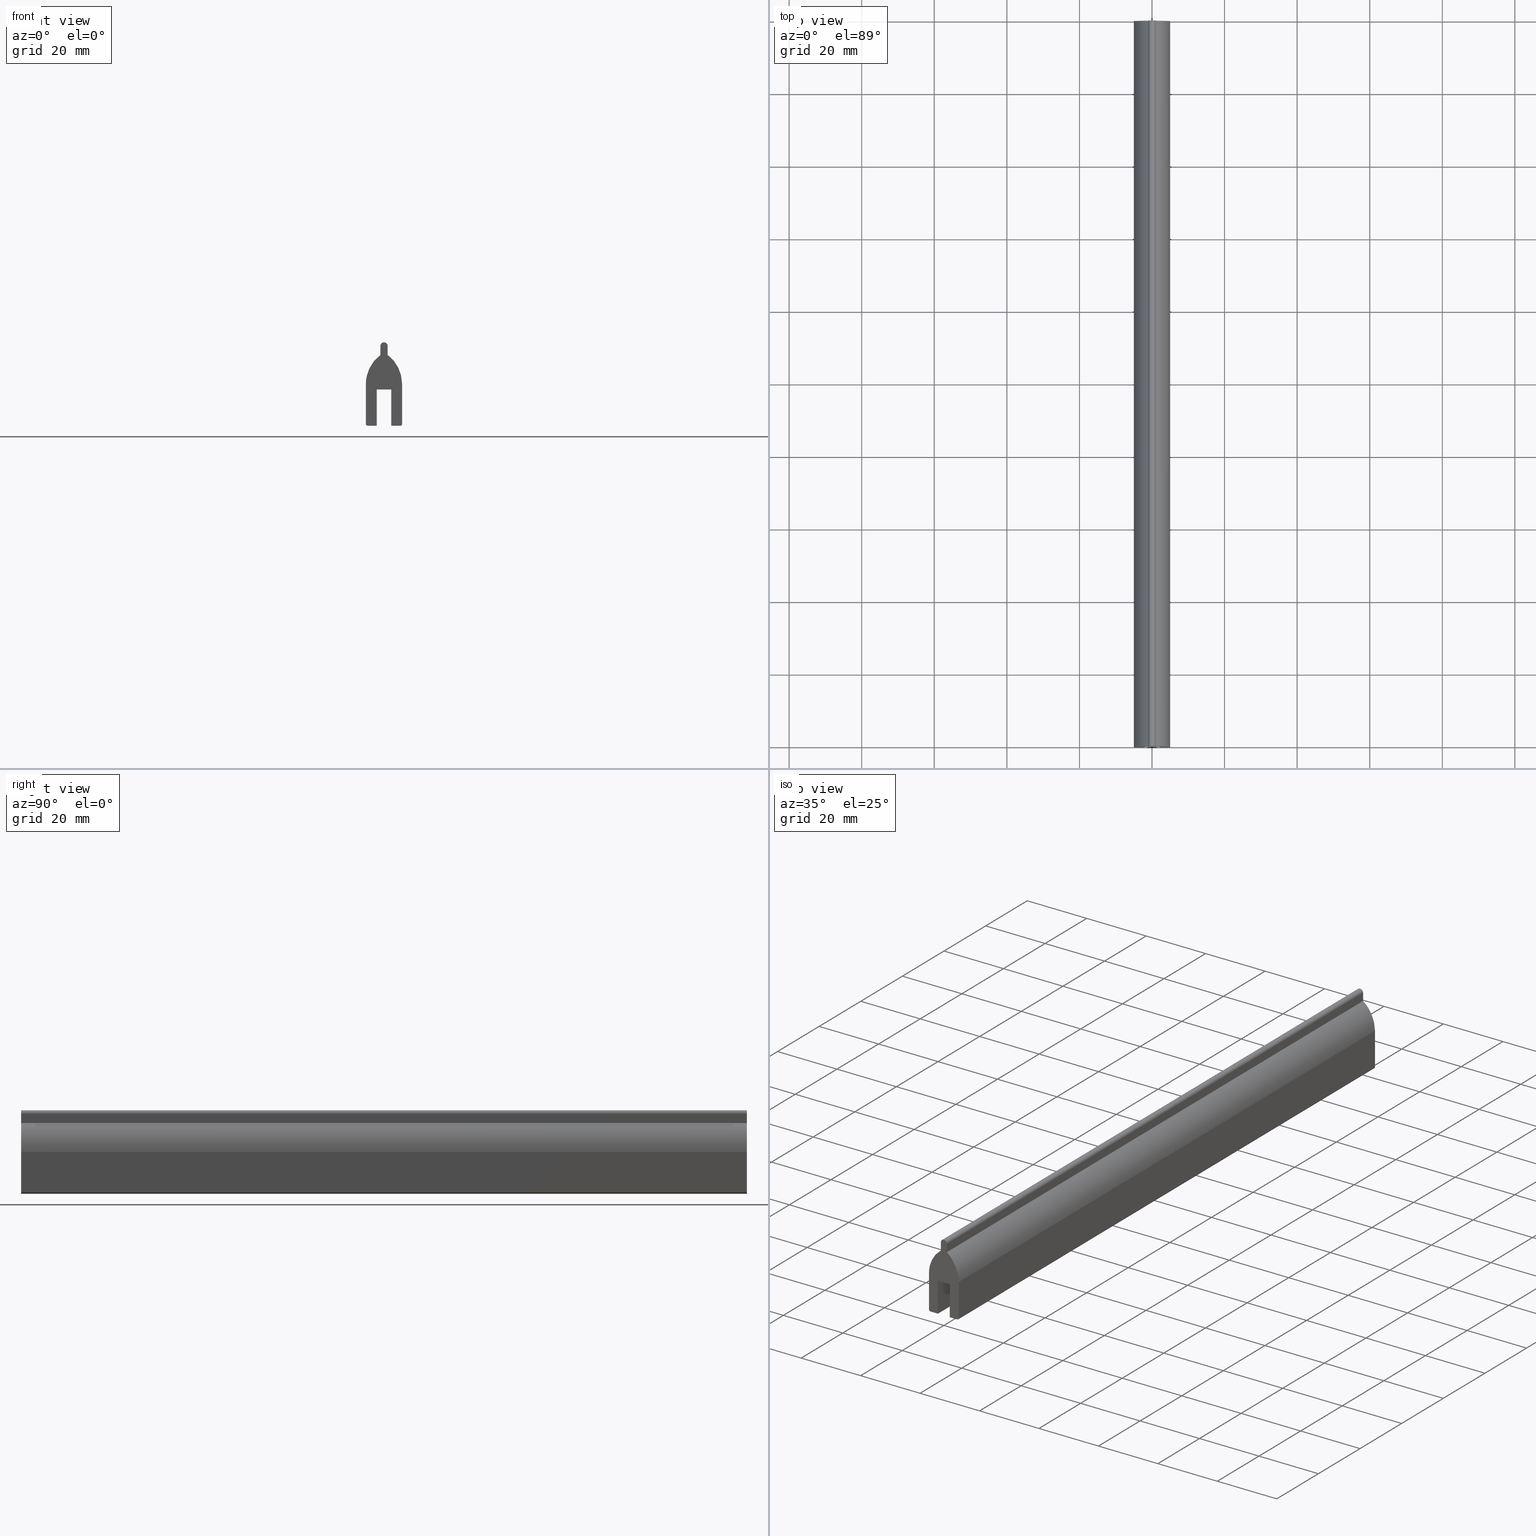
[diagram: canonical four-view strip — front | top / right | iso, engineering-drawing reading convention]
A machine part, canonical four-view strip (front | top / right | iso — engineering-drawing reading convention). The complete STEP part file that produces these views, byte-faithful:
ISO-10303-21;
HEADER;
/****************************************************************
 * Generated by software with PDE/Lib inside                    *
 * PDElib Version 4.4.1-0003, patched  Thursday August 19 11:58 *
 * International Technegroup Inc. (www.iti-oh.com)              *
 ****************************************************************/
FILE_DESCRIPTION((''),'2;1');
FILE_NAME('','2005-12-14T14:55:02',(''),(''),'','CADfix','');
FILE_SCHEMA(('AUTOMOTIVE_DESIGN'));
ENDSEC;
DATA;
#5=APPLICATION_CONTEXT('automotive design');
#6=APPLICATION_PROTOCOL_DEFINITION('Draft International Standard','automotive_design',1998,#5);
#7=PRODUCT_CONTEXT('None',#5,'mechanical');
#8=PRODUCT('rubber foam','','None',(#7));
#9=PRODUCT_RELATED_PRODUCT_CATEGORY('part','description',(#8));
#10=PRODUCT_DEFINITION_FORMATION('None','None',#8);
#11=PRODUCT_DEFINITION_CONTEXT('part definition',#5,'design');
#12=PRODUCT_DEFINITION('None','None',#10,#11);
#18=(NAMED_UNIT(*)PLANE_ANGLE_UNIT()SI_UNIT($,.RADIAN.));
#19=DIMENSIONAL_EXPONENTS(0.0,0.0,0.0,0.0,0.0,0.0,0.0);
#20=PLANE_ANGLE_MEASURE_WITH_UNIT(PLANE_ANGLE_MEASURE(0.017453292500000),#18);
#24=(CONVERSION_BASED_UNIT('DEGREE',#20)NAMED_UNIT(#19)PLANE_ANGLE_UNIT());
#28=(NAMED_UNIT(*)SI_UNIT($,.STERADIAN.)SOLID_ANGLE_UNIT());
#32=(LENGTH_UNIT()NAMED_UNIT(*)SI_UNIT(.MILLI.,.METRE.));
#34=UNCERTAINTY_MEASURE_WITH_UNIT(LENGTH_MEASURE(0.001000000000000),#32,'DISTANCE_ACCURACY_VALUE','');
#36=(GEOMETRIC_REPRESENTATION_CONTEXT(3)GLOBAL_UNCERTAINTY_ASSIGNED_CONTEXT((#34))GLOBAL_UNIT_ASSIGNED_CONTEXT((#24,#28,#32))REPRESENTATION_CONTEXT('None','None'));
#37=AXIS2_PLACEMENT_3D('',#38,#39,#40);
#38=CARTESIAN_POINT('',(0.0,0.0,0.0));
#39=DIRECTION('',(0.0,0.0,1.0));
#40=DIRECTION('',(1.0,0.0,0.0));
#41=ADVANCED_BREP_SHAPE_REPRESENTATION('',(#37,#614),#36);
#42=PRODUCT_DEFINITION_SHAPE('','',#12);
#43=SHAPE_DEFINITION_REPRESENTATION(#42,#41);
#44=CARTESIAN_POINT('',(-5.499499980618060,0.0,1.148849955385142));
#45=CARTESIAN_POINT('',(5.499500248838961,0.0,1.148849955385142));
#46=CARTESIAN_POINT('',(-5.499499980618060,0.0,-24.148850572327881));
#47=CARTESIAN_POINT('',(5.499500248838961,0.0,-24.148850572327881));
#48=B_SPLINE_SURFACE_WITH_KNOTS('',1,1,((#44,#46),(#45,#47)),.UNSPECIFIED.,.F.,.F.,.U.,(2,2),(2,2),(0.0,10.999000229457019),(0.0,25.297700527713019),.UNSPECIFIED.);
#49=CARTESIAN_POINT('',(-0.999999999999989,0.0,-3.500000000000000));
#50=VERTEX_POINT('',#49);
#51=CARTESIAN_POINT('',(-5.0,0.0,-11.500000000000000));
#52=VERTEX_POINT('',#51);
#53=CARTESIAN_POINT('',(-0.999999999999992,0.0,-3.499999999999994));
#54=CARTESIAN_POINT('',(-5.0,0.0,-6.499999999999996));
#55=CARTESIAN_POINT('',(-5.0,0.0,-11.500000000000000));
#63=(BOUNDED_CURVE()B_SPLINE_CURVE(2,(#53,#54,#55),.UNSPECIFIED.,.F.,.U.)CURVE()GEOMETRIC_REPRESENTATION_ITEM()QUASI_UNIFORM_CURVE()RATIONAL_B_SPLINE_CURVE((1.0,0.894427190999916,1.0))REPRESENTATION_ITEM(''));
#64=EDGE_CURVE('',#50,#52,#63,.T.);
#65=ORIENTED_EDGE('',*,*,#64,.T.);
#66=CARTESIAN_POINT('',(-5.0,0.0,-22.500000000000000));
#67=VERTEX_POINT('',#66);
#68=CARTESIAN_POINT('',(-5.0,0.0,-11.500000000000000));
#69=CARTESIAN_POINT('',(-5.0,0.0,-22.500000000000000));
#70=QUASI_UNIFORM_CURVE('',1,(#68,#69),.UNSPECIFIED.,.F.,.U.);
#71=EDGE_CURVE('',#52,#67,#70,.T.);
#72=ORIENTED_EDGE('',*,*,#71,.T.);
#73=CARTESIAN_POINT('',(-4.500000000000000,0.0,-23.0));
#74=VERTEX_POINT('',#73);
#75=CARTESIAN_POINT('',(-4.999999999999999,0.0,-22.500000000000000));
#76=CARTESIAN_POINT('',(-4.999999999999998,0.0,-22.999999999999993));
#77=CARTESIAN_POINT('',(-4.500000000000000,0.0,-23.0));
#85=(BOUNDED_CURVE()B_SPLINE_CURVE(2,(#75,#76,#77),.UNSPECIFIED.,.F.,.U.)CURVE()GEOMETRIC_REPRESENTATION_ITEM()QUASI_UNIFORM_CURVE()RATIONAL_B_SPLINE_CURVE((1.0,0.707106781186548,1.0))REPRESENTATION_ITEM(''));
#86=EDGE_CURVE('',#67,#74,#85,.T.);
#87=ORIENTED_EDGE('',*,*,#86,.T.);
#88=CARTESIAN_POINT('',(-2.0,0.0,-23.0));
#89=VERTEX_POINT('',#88);
#90=CARTESIAN_POINT('',(-4.500000000000000,0.0,-23.0));
#91=CARTESIAN_POINT('',(-2.0,0.0,-23.0));
#92=QUASI_UNIFORM_CURVE('',1,(#90,#91),.UNSPECIFIED.,.F.,.U.);
#93=EDGE_CURVE('',#74,#89,#92,.T.);
#94=ORIENTED_EDGE('',*,*,#93,.T.);
#95=CARTESIAN_POINT('',(-2.0,0.0,-13.0));
#96=VERTEX_POINT('',#95);
#97=CARTESIAN_POINT('',(-2.0,0.0,-23.0));
#98=CARTESIAN_POINT('',(-2.0,0.0,-13.0));
#99=QUASI_UNIFORM_CURVE('',1,(#97,#98),.UNSPECIFIED.,.F.,.U.);
#100=EDGE_CURVE('',#89,#96,#99,.T.);
#101=ORIENTED_EDGE('',*,*,#100,.T.);
#102=CARTESIAN_POINT('',(2.0,0.0,-13.0));
#103=VERTEX_POINT('',#102);
#104=CARTESIAN_POINT('',(-2.0,0.0,-13.0));
#105=CARTESIAN_POINT('',(2.0,0.0,-13.0));
#106=QUASI_UNIFORM_CURVE('',1,(#104,#105),.UNSPECIFIED.,.F.,.U.);
#107=EDGE_CURVE('',#96,#103,#106,.T.);
#108=ORIENTED_EDGE('',*,*,#107,.T.);
#109=CARTESIAN_POINT('',(2.0,0.0,-23.0));
#110=VERTEX_POINT('',#109);
#111=CARTESIAN_POINT('',(2.0,0.0,-13.0));
#112=CARTESIAN_POINT('',(2.0,0.0,-23.0));
#113=QUASI_UNIFORM_CURVE('',1,(#111,#112),.UNSPECIFIED.,.F.,.U.);
#114=EDGE_CURVE('',#103,#110,#113,.T.);
#115=ORIENTED_EDGE('',*,*,#114,.T.);
#116=CARTESIAN_POINT('',(4.500000000000000,0.0,-23.0));
#117=VERTEX_POINT('',#116);
#118=CARTESIAN_POINT('',(2.0,0.0,-23.0));
#119=CARTESIAN_POINT('',(4.500000000000000,0.0,-23.0));
#120=QUASI_UNIFORM_CURVE('',1,(#118,#119),.UNSPECIFIED.,.F.,.U.);
#121=EDGE_CURVE('',#110,#117,#120,.T.);
#122=ORIENTED_EDGE('',*,*,#121,.T.);
#123=CARTESIAN_POINT('',(5.0,0.0,-22.500000000000000));
#124=VERTEX_POINT('',#123);
#125=CARTESIAN_POINT('',(4.500000000000000,0.0,-23.0));
#126=CARTESIAN_POINT('',(4.999999999999998,0.0,-22.999999999999993));
#127=CARTESIAN_POINT('',(4.999999999999999,0.0,-22.500000000000000));
#135=(BOUNDED_CURVE()B_SPLINE_CURVE(2,(#125,#126,#127),.UNSPECIFIED.,.F.,.U.)CURVE()GEOMETRIC_REPRESENTATION_ITEM()QUASI_UNIFORM_CURVE()RATIONAL_B_SPLINE_CURVE((1.0,0.707106781186548,1.0))REPRESENTATION_ITEM(''));
#136=EDGE_CURVE('',#117,#124,#135,.T.);
#137=ORIENTED_EDGE('',*,*,#136,.T.);
#138=CARTESIAN_POINT('',(5.0,0.0,-11.500000000000000));
#139=VERTEX_POINT('',#138);
#140=CARTESIAN_POINT('',(5.0,0.0,-22.500000000000000));
#141=CARTESIAN_POINT('',(5.0,0.0,-11.500000000000000));
#142=QUASI_UNIFORM_CURVE('',1,(#140,#141),.UNSPECIFIED.,.F.,.U.);
#143=EDGE_CURVE('',#124,#139,#142,.T.);
#144=ORIENTED_EDGE('',*,*,#143,.T.);
#145=CARTESIAN_POINT('',(1.000000049449502,0.0,-3.500000037087030));
#146=VERTEX_POINT('',#145);
#147=CARTESIAN_POINT('',(5.0,0.0,-11.500000000000000));
#148=CARTESIAN_POINT('',(5.0,0.0,-6.500000038632387));
#149=CARTESIAN_POINT('',(1.000000049449502,0.0,-3.500000037087030));
#157=(BOUNDED_CURVE()B_SPLINE_CURVE(2,(#147,#148,#149),.UNSPECIFIED.,.F.,.U.)CURVE()GEOMETRIC_REPRESENTATION_ITEM()QUASI_UNIFORM_CURVE()RATIONAL_B_SPLINE_CURVE((1.0,0.894427192382070,1.0))REPRESENTATION_ITEM(''));
#158=EDGE_CURVE('',#139,#146,#157,.T.);
#159=ORIENTED_EDGE('',*,*,#158,.T.);
#160=CARTESIAN_POINT('',(1.0,0.0,-1.0));
#161=VERTEX_POINT('',#160);
#162=CARTESIAN_POINT('',(1.000000049449502,0.0,-3.500000037087030));
#163=CARTESIAN_POINT('',(1.0,0.0,-1.0));
#164=QUASI_UNIFORM_CURVE('',1,(#162,#163),.UNSPECIFIED.,.F.,.U.);
#165=EDGE_CURVE('',#146,#161,#164,.T.);
#166=ORIENTED_EDGE('',*,*,#165,.T.);
#167=CARTESIAN_POINT('',(-1.0,0.0,-1.0));
#168=VERTEX_POINT('',#167);
#169=CARTESIAN_POINT('',(1.0,0.0,-1.0));
#170=CARTESIAN_POINT('',(1.0,0.0,0.0));
#171=CARTESIAN_POINT('',(0.0,0.0,0.0));
#172=CARTESIAN_POINT('',(-1.0,0.0,0.0));
#173=CARTESIAN_POINT('',(-1.0,0.0,-1.0));
#181=(BOUNDED_CURVE()B_SPLINE_CURVE(2,(#169,#170,#171,#172,#173),.UNSPECIFIED.,.F.,.U.)B_SPLINE_CURVE_WITH_KNOTS((3,2,3),(0.0,0.500000000000000,1.0),.UNSPECIFIED.)CURVE()GEOMETRIC_REPRESENTATION_ITEM()RATIONAL_B_SPLINE_CURVE((1.0,0.707106781186548,1.0,0.707106781186548,1.0))REPRESENTATION_ITEM(''));
#182=EDGE_CURVE('',#161,#168,#181,.T.);
#183=ORIENTED_EDGE('',*,*,#182,.T.);
#184=CARTESIAN_POINT('',(-1.0,0.0,-1.0));
#185=CARTESIAN_POINT('',(-0.999999999999989,0.0,-3.500000000000000));
#186=QUASI_UNIFORM_CURVE('',1,(#184,#185),.UNSPECIFIED.,.F.,.U.);
#187=EDGE_CURVE('',#168,#50,#186,.T.);
#188=ORIENTED_EDGE('',*,*,#187,.T.);
#189=EDGE_LOOP('',(#65,#72,#87,#94,#101,#108,#115,#122,#137,#144,#159,#166,#183,#188));
#190=FACE_OUTER_BOUND('',#189,.T.);
#191=ADVANCED_FACE('',(#190),#48,.F.);
#192=CARTESIAN_POINT('',(-5.499499980618060,200.0,1.148849955385142));
#193=CARTESIAN_POINT('',(5.499500248838961,200.0,1.148849955385142));
#194=CARTESIAN_POINT('',(-5.499499980618060,200.0,-24.148850572327881));
#195=CARTESIAN_POINT('',(5.499500248838961,200.0,-24.148850572327881));
#196=B_SPLINE_SURFACE_WITH_KNOTS('',1,1,((#192,#194),(#193,#195)),.UNSPECIFIED.,.F.,.F.,.U.,(2,2),(2,2),(0.0,10.999000229457019),(0.0,25.297700527713019),.UNSPECIFIED.);
#197=CARTESIAN_POINT('',(-0.999999999999989,200.0,-3.500000000000000));
#198=VERTEX_POINT('',#197);
#199=CARTESIAN_POINT('',(-5.0,200.0,-11.500000000000000));
#200=VERTEX_POINT('',#199);
#201=CARTESIAN_POINT('',(-0.999999999999992,200.0,-3.499999999999994));
#202=CARTESIAN_POINT('',(-5.0,200.0,-6.499999999999996));
#203=CARTESIAN_POINT('',(-5.0,200.0,-11.500000000000000));
#211=(BOUNDED_CURVE()B_SPLINE_CURVE(2,(#201,#202,#203),.UNSPECIFIED.,.F.,.U.)CURVE()GEOMETRIC_REPRESENTATION_ITEM()QUASI_UNIFORM_CURVE()RATIONAL_B_SPLINE_CURVE((1.0,0.894427190999916,1.0))REPRESENTATION_ITEM(''));
#212=EDGE_CURVE('',#198,#200,#211,.T.);
#213=ORIENTED_EDGE('',*,*,#212,.F.);
#214=CARTESIAN_POINT('',(-1.0,200.0,-1.0));
#215=VERTEX_POINT('',#214);
#216=CARTESIAN_POINT('',(-1.0,200.0,-1.0));
#217=CARTESIAN_POINT('',(-0.999999999999989,200.0,-3.500000000000000));
#218=QUASI_UNIFORM_CURVE('',1,(#216,#217),.UNSPECIFIED.,.F.,.U.);
#219=EDGE_CURVE('',#215,#198,#218,.T.);
#220=ORIENTED_EDGE('',*,*,#219,.F.);
#221=CARTESIAN_POINT('',(1.0,200.0,-1.0));
#222=VERTEX_POINT('',#221);
#223=CARTESIAN_POINT('',(1.0,200.0,-1.0));
#224=CARTESIAN_POINT('',(1.0,200.0,0.0));
#225=CARTESIAN_POINT('',(0.0,200.0,0.0));
#226=CARTESIAN_POINT('',(-1.0,200.0,0.0));
#227=CARTESIAN_POINT('',(-1.0,200.0,-1.0));
#235=(BOUNDED_CURVE()B_SPLINE_CURVE(2,(#223,#224,#225,#226,#227),.UNSPECIFIED.,.F.,.U.)B_SPLINE_CURVE_WITH_KNOTS((3,2,3),(0.0,0.500000000000000,1.0),.UNSPECIFIED.)CURVE()GEOMETRIC_REPRESENTATION_ITEM()RATIONAL_B_SPLINE_CURVE((1.0,0.707106781186548,1.0,0.707106781186548,1.0))REPRESENTATION_ITEM(''));
#236=EDGE_CURVE('',#222,#215,#235,.T.);
#237=ORIENTED_EDGE('',*,*,#236,.F.);
#238=CARTESIAN_POINT('',(1.000000049449502,200.0,-3.500000037087030));
#239=VERTEX_POINT('',#238);
#240=CARTESIAN_POINT('',(1.000000049449502,200.0,-3.500000037087030));
#241=CARTESIAN_POINT('',(1.0,200.0,-1.0));
#242=QUASI_UNIFORM_CURVE('',1,(#240,#241),.UNSPECIFIED.,.F.,.U.);
#243=EDGE_CURVE('',#239,#222,#242,.T.);
#244=ORIENTED_EDGE('',*,*,#243,.F.);
#245=CARTESIAN_POINT('',(5.0,200.0,-11.500000000000000));
#246=VERTEX_POINT('',#245);
#247=CARTESIAN_POINT('',(5.0,200.0,-11.500000000000000));
#248=CARTESIAN_POINT('',(5.0,199.999999999999940,-6.500000038632387));
#249=CARTESIAN_POINT('',(1.000000049449456,200.0,-3.500000037087092));
#257=(BOUNDED_CURVE()B_SPLINE_CURVE(2,(#247,#248,#249),.UNSPECIFIED.,.F.,.U.)CURVE()GEOMETRIC_REPRESENTATION_ITEM()QUASI_UNIFORM_CURVE()RATIONAL_B_SPLINE_CURVE((1.0,0.894427192382070,1.0))REPRESENTATION_ITEM(''));
#258=EDGE_CURVE('',#246,#239,#257,.T.);
#259=ORIENTED_EDGE('',*,*,#258,.F.);
#260=CARTESIAN_POINT('',(5.0,200.0,-22.500000000000000));
#261=VERTEX_POINT('',#260);
#262=CARTESIAN_POINT('',(5.0,200.0,-22.500000000000000));
#263=CARTESIAN_POINT('',(5.0,200.0,-11.500000000000000));
#264=QUASI_UNIFORM_CURVE('',1,(#262,#263),.UNSPECIFIED.,.F.,.U.);
#265=EDGE_CURVE('',#261,#246,#264,.T.);
#266=ORIENTED_EDGE('',*,*,#265,.F.);
#267=CARTESIAN_POINT('',(4.500000000000000,200.0,-23.0));
#268=VERTEX_POINT('',#267);
#269=CARTESIAN_POINT('',(4.500000000000000,200.0,-23.0));
#270=CARTESIAN_POINT('',(4.999999999999998,200.0,-22.999999999999993));
#271=CARTESIAN_POINT('',(4.999999999999999,200.0,-22.500000000000000));
#279=(BOUNDED_CURVE()B_SPLINE_CURVE(2,(#269,#270,#271),.UNSPECIFIED.,.F.,.U.)CURVE()GEOMETRIC_REPRESENTATION_ITEM()QUASI_UNIFORM_CURVE()RATIONAL_B_SPLINE_CURVE((1.0,0.707106781186548,1.0))REPRESENTATION_ITEM(''));
#280=EDGE_CURVE('',#268,#261,#279,.T.);
#281=ORIENTED_EDGE('',*,*,#280,.F.);
#282=CARTESIAN_POINT('',(2.0,200.0,-23.0));
#283=VERTEX_POINT('',#282);
#284=CARTESIAN_POINT('',(2.0,200.0,-23.0));
#285=CARTESIAN_POINT('',(4.500000000000000,200.0,-23.0));
#286=QUASI_UNIFORM_CURVE('',1,(#284,#285),.UNSPECIFIED.,.F.,.U.);
#287=EDGE_CURVE('',#283,#268,#286,.T.);
#288=ORIENTED_EDGE('',*,*,#287,.F.);
#289=CARTESIAN_POINT('',(2.0,200.0,-13.0));
#290=VERTEX_POINT('',#289);
#291=CARTESIAN_POINT('',(2.0,200.0,-13.0));
#292=CARTESIAN_POINT('',(2.0,200.0,-23.0));
#293=QUASI_UNIFORM_CURVE('',1,(#291,#292),.UNSPECIFIED.,.F.,.U.);
#294=EDGE_CURVE('',#290,#283,#293,.T.);
#295=ORIENTED_EDGE('',*,*,#294,.F.);
#296=CARTESIAN_POINT('',(-2.0,200.0,-13.0));
#297=VERTEX_POINT('',#296);
#298=CARTESIAN_POINT('',(-2.0,200.0,-13.0));
#299=CARTESIAN_POINT('',(2.0,200.0,-13.0));
#300=QUASI_UNIFORM_CURVE('',1,(#298,#299),.UNSPECIFIED.,.F.,.U.);
#301=EDGE_CURVE('',#297,#290,#300,.T.);
#302=ORIENTED_EDGE('',*,*,#301,.F.);
#303=CARTESIAN_POINT('',(-2.0,200.0,-23.0));
#304=VERTEX_POINT('',#303);
#305=CARTESIAN_POINT('',(-2.0,200.0,-23.0));
#306=CARTESIAN_POINT('',(-2.0,200.0,-13.0));
#307=QUASI_UNIFORM_CURVE('',1,(#305,#306),.UNSPECIFIED.,.F.,.U.);
#308=EDGE_CURVE('',#304,#297,#307,.T.);
#309=ORIENTED_EDGE('',*,*,#308,.F.);
#310=CARTESIAN_POINT('',(-4.500000000000000,200.0,-23.0));
#311=VERTEX_POINT('',#310);
#312=CARTESIAN_POINT('',(-4.500000000000000,200.0,-23.0));
#313=CARTESIAN_POINT('',(-2.0,200.0,-23.0));
#314=QUASI_UNIFORM_CURVE('',1,(#312,#313),.UNSPECIFIED.,.F.,.U.);
#315=EDGE_CURVE('',#311,#304,#314,.T.);
#316=ORIENTED_EDGE('',*,*,#315,.F.);
#317=CARTESIAN_POINT('',(-5.0,200.0,-22.500000000000000));
#318=VERTEX_POINT('',#317);
#319=CARTESIAN_POINT('',(-4.999999999999999,200.0,-22.500000000000000));
#320=CARTESIAN_POINT('',(-4.999999999999998,200.0,-22.999999999999993));
#321=CARTESIAN_POINT('',(-4.500000000000000,200.0,-23.0));
#329=(BOUNDED_CURVE()B_SPLINE_CURVE(2,(#319,#320,#321),.UNSPECIFIED.,.F.,.U.)CURVE()GEOMETRIC_REPRESENTATION_ITEM()QUASI_UNIFORM_CURVE()RATIONAL_B_SPLINE_CURVE((1.0,0.707106781186548,1.0))REPRESENTATION_ITEM(''));
#330=EDGE_CURVE('',#318,#311,#329,.T.);
#331=ORIENTED_EDGE('',*,*,#330,.F.);
#332=CARTESIAN_POINT('',(-5.0,200.0,-11.500000000000000));
#333=CARTESIAN_POINT('',(-5.0,200.0,-22.500000000000000));
#334=QUASI_UNIFORM_CURVE('',1,(#332,#333),.UNSPECIFIED.,.F.,.U.);
#335=EDGE_CURVE('',#200,#318,#334,.T.);
#336=ORIENTED_EDGE('',*,*,#335,.F.);
#337=EDGE_LOOP('',(#213,#220,#237,#244,#259,#266,#281,#288,#295,#302,#309,#316,#331,#336));
#338=FACE_OUTER_BOUND('',#337,.T.);
#339=ADVANCED_FACE('',(#338),#196,.T.);
#340=CARTESIAN_POINT('',(-0.999999999999989,-9.989999612361194,-3.624874995154515));
#341=CARTESIAN_POINT('',(-0.999999999999989,-9.989999612361194,-0.875124937790260));
#342=CARTESIAN_POINT('',(-0.999999999999989,209.990004976779200,-3.624874995154515));
#343=CARTESIAN_POINT('',(-0.999999999999989,209.990004976779200,-0.875124937790260));
#344=B_SPLINE_SURFACE_WITH_KNOTS('',1,1,((#340,#342),(#341,#343)),.UNSPECIFIED.,.F.,.F.,.U.,(2,2),(2,2),(0.0,2.749750057364256),(0.0,219.980004589140410),.UNSPECIFIED.);
#345=ORIENTED_EDGE('',*,*,#187,.F.);
#346=CARTESIAN_POINT('',(-1.0,200.0,-1.0));
#347=CARTESIAN_POINT('',(-1.0,0.0,-1.0));
#348=QUASI_UNIFORM_CURVE('',1,(#346,#347),.UNSPECIFIED.,.F.,.U.);
#349=EDGE_CURVE('',#215,#168,#348,.T.);
#350=ORIENTED_EDGE('',*,*,#349,.F.);
#351=ORIENTED_EDGE('',*,*,#219,.T.);
#352=CARTESIAN_POINT('',(-0.999999999999989,200.0,-3.500000000000000));
#353=CARTESIAN_POINT('',(-0.999999999999989,0.0,-3.500000000000000));
#354=QUASI_UNIFORM_CURVE('',1,(#352,#353),.UNSPECIFIED.,.F.,.U.);
#355=EDGE_CURVE('',#198,#50,#354,.T.);
#356=ORIENTED_EDGE('',*,*,#355,.T.);
#357=EDGE_LOOP('',(#345,#350,#351,#356));
#358=FACE_OUTER_BOUND('',#357,.T.);
#359=ADVANCED_FACE('',(#358),#344,.T.);
#360=CARTESIAN_POINT('',(-0.999657324975557,205.0,-1.026176948307875));
#361=CARTESIAN_POINT('',(-0.999657324975557,-5.125000000000000,-1.026176948307875));
#362=CARTESIAN_POINT('',(-1.027242072842902,205.000000000000030,0.027242072842899));
#363=CARTESIAN_POINT('',(-1.027242072842902,-5.124999999999999,0.027242072842899));
#364=CARTESIAN_POINT('',(0.026176948307872,205.0,-0.000342675024443));
#365=CARTESIAN_POINT('',(0.026176948307872,-5.125000000000000,-0.000342675024443));
#366=CARTESIAN_POINT('',(1.079595969458645,205.000000000000030,-0.027927422891785));
#367=CARTESIAN_POINT('',(1.079595969458645,-5.124999999999999,-0.027927422891785));
#368=CARTESIAN_POINT('',(0.996917333733128,205.0,-1.078459095727844));
#369=CARTESIAN_POINT('',(0.996917333733128,-5.125000000000000,-1.078459095727844));
#377=(BOUNDED_SURFACE()B_SPLINE_SURFACE(1,2,((#360,#362,#364,#366,#368),(#361,#363,#365,#367,#369)),.UNSPECIFIED.,.F.,.F.,.U.)B_SPLINE_SURFACE_WITH_KNOTS((2,2),(3,2,3),(0.0,210.125000000000110),(0.0,1.0,2.0),.UNSPECIFIED.)GEOMETRIC_REPRESENTATION_ITEM()RATIONAL_B_SPLINE_SURFACE(((1.0,0.688354575693754,1.0,0.688354575693754,1.0),(1.0,0.688354575693754,1.0,0.688354575693754,1.0)))REPRESENTATION_ITEM('')SURFACE());
#378=ORIENTED_EDGE('',*,*,#182,.F.);
#379=CARTESIAN_POINT('',(1.0,200.0,-1.0));
#380=CARTESIAN_POINT('',(1.0,0.0,-1.0));
#381=QUASI_UNIFORM_CURVE('',1,(#379,#380),.UNSPECIFIED.,.F.,.U.);
#382=EDGE_CURVE('',#222,#161,#381,.T.);
#383=ORIENTED_EDGE('',*,*,#382,.F.);
#384=ORIENTED_EDGE('',*,*,#236,.T.);
#385=ORIENTED_EDGE('',*,*,#349,.T.);
#386=EDGE_LOOP('',(#378,#383,#384,#385));
#387=FACE_OUTER_BOUND('',#386,.T.);
#388=ADVANCED_FACE('',(#387),#377,.T.);
#389=CARTESIAN_POINT('',(1.0,-9.989999612361194,-0.875125011924744));
#390=CARTESIAN_POINT('',(1.0,-9.989999612361194,-3.624874913403576));
#391=CARTESIAN_POINT('',(1.0,209.990004976779200,-0.875125011924744));
#392=CARTESIAN_POINT('',(1.0,209.990004976779200,-3.624874913403576));
#393=B_SPLINE_SURFACE_WITH_KNOTS('',1,1,((#389,#391),(#390,#392)),.UNSPECIFIED.,.F.,.F.,.U.,(2,2),(2,2),(0.0,2.749749901478832),(0.0,219.980004589140410),.UNSPECIFIED.);
#394=ORIENTED_EDGE('',*,*,#165,.F.);
#395=CARTESIAN_POINT('',(1.000000049449502,200.0,-3.500000037087030));
#396=CARTESIAN_POINT('',(1.000000049449502,0.0,-3.500000037087030));
#397=QUASI_UNIFORM_CURVE('',1,(#395,#396),.UNSPECIFIED.,.F.,.U.);
#398=EDGE_CURVE('',#239,#146,#397,.T.);
#399=ORIENTED_EDGE('',*,*,#398,.F.);
#400=ORIENTED_EDGE('',*,*,#243,.T.);
#401=ORIENTED_EDGE('',*,*,#382,.T.);
#402=EDGE_LOOP('',(#394,#399,#400,#401));
#403=FACE_OUTER_BOUND('',#402,.T.);
#404=ADVANCED_FACE('',(#403),#393,.T.);
#405=CARTESIAN_POINT('',(0.664062369248323,205.0,-3.258738113779845));
#406=CARTESIAN_POINT('',(0.664062369248323,-5.125000000000000,-3.258738113779845));
#407=CARTESIAN_POINT('',(5.237688153939895,205.0,-6.402104027367725));
#408=CARTESIAN_POINT('',(5.237688153939895,-5.125000000000001,-6.402104027367725));
#409=CARTESIAN_POINT('',(4.990038418737389,205.000000000000030,-11.946242526156869));
#410=CARTESIAN_POINT('',(4.990038418737389,-5.125000000000000,-11.946242526156869));
#418=(BOUNDED_SURFACE()B_SPLINE_SURFACE(1,2,((#405,#407,#409),(#406,#408,#410)),.UNSPECIFIED.,.F.,.F.,.U.)B_SPLINE_SURFACE_WITH_KNOTS((2,2),(3,3),(0.0,210.125000000000000),(0.0,10.355382064580510),.UNSPECIFIED.)GEOMETRIC_REPRESENTATION_ITEM()RATIONAL_B_SPLINE_SURFACE(((1.0,0.870547137844800,0.991261755100546),(1.0,0.870547137844800,0.991261755100546)))REPRESENTATION_ITEM('')SURFACE());
#419=ORIENTED_EDGE('',*,*,#158,.F.);
#420=CARTESIAN_POINT('',(5.0,200.0,-11.500000000000000));
#421=CARTESIAN_POINT('',(5.0,0.0,-11.500000000000000));
#422=QUASI_UNIFORM_CURVE('',1,(#420,#421),.UNSPECIFIED.,.F.,.U.);
#423=EDGE_CURVE('',#246,#139,#422,.T.);
#424=ORIENTED_EDGE('',*,*,#423,.F.);
#425=ORIENTED_EDGE('',*,*,#258,.T.);
#426=ORIENTED_EDGE('',*,*,#398,.T.);
#427=EDGE_LOOP('',(#419,#424,#425,#426));
#428=FACE_OUTER_BOUND('',#427,.T.);
#429=ADVANCED_FACE('',(#428),#418,.T.);
#430=CARTESIAN_POINT('',(5.0,-9.989999612361194,-10.950550021320129));
#431=CARTESIAN_POINT('',(5.0,-9.989999612361194,-23.049450273722861));
#432=CARTESIAN_POINT('',(5.0,209.990004976779200,-10.950550021320129));
#433=CARTESIAN_POINT('',(5.0,209.990004976779200,-23.049450273722861));
#434=B_SPLINE_SURFACE_WITH_KNOTS('',1,1,((#430,#432),(#431,#433)),.UNSPECIFIED.,.F.,.F.,.U.,(2,2),(2,2),(0.0,12.098900252402730),(0.0,219.980004589140410),.UNSPECIFIED.);
#435=ORIENTED_EDGE('',*,*,#143,.F.);
#436=CARTESIAN_POINT('',(5.0,200.0,-22.500000000000000));
#437=CARTESIAN_POINT('',(5.0,0.0,-22.500000000000000));
#438=QUASI_UNIFORM_CURVE('',1,(#436,#437),.UNSPECIFIED.,.F.,.U.);
#439=EDGE_CURVE('',#261,#124,#438,.T.);
#440=ORIENTED_EDGE('',*,*,#439,.F.);
#441=ORIENTED_EDGE('',*,*,#265,.T.);
#442=ORIENTED_EDGE('',*,*,#423,.T.);
#443=EDGE_LOOP('',(#435,#440,#441,#442));
#444=FACE_OUTER_BOUND('',#443,.T.);
#445=ADVANCED_FACE('',(#444),#434,.T.);
#446=CARTESIAN_POINT('',(4.999828662487778,205.0,-22.486911525846072));
#447=CARTESIAN_POINT('',(4.999828662487778,-5.125000000000000,-22.486911525846072));
#448=CARTESIAN_POINT('',(5.014246130083128,204.999999999999970,-23.037492400277355));
#449=CARTESIAN_POINT('',(5.014246130083128,-5.125000000000000,-23.037492400277355));
#450=CARTESIAN_POINT('',(4.464839962187009,205.000000000000090,-22.998762239690411));
#451=CARTESIAN_POINT('',(4.464839962187009,-5.125000000000000,-22.998762239690411));
#459=(BOUNDED_SURFACE()B_SPLINE_SURFACE(1,2,((#446,#448,#450),(#447,#449,#451)),.UNSPECIFIED.,.F.,.F.,.U.)B_SPLINE_SURFACE_WITH_KNOTS((2,2),(3,3),(0.0,210.125000000000000),(0.0,0.994518632334191),.UNSPECIFIED.)GEOMETRIC_REPRESENTATION_ITEM()RATIONAL_B_SPLINE_SURFACE(((1.0,0.670944223154768,0.996392648609106),(1.0,0.670944223154768,0.996392648609106)))REPRESENTATION_ITEM('')SURFACE());
#460=ORIENTED_EDGE('',*,*,#136,.F.);
#461=CARTESIAN_POINT('',(4.500000000000000,200.0,-23.0));
#462=CARTESIAN_POINT('',(4.500000000000000,0.0,-23.0));
#463=QUASI_UNIFORM_CURVE('',1,(#461,#462),.UNSPECIFIED.,.F.,.U.);
#464=EDGE_CURVE('',#268,#117,#463,.T.);
#465=ORIENTED_EDGE('',*,*,#464,.F.);
#466=ORIENTED_EDGE('',*,*,#280,.T.);
#467=ORIENTED_EDGE('',*,*,#439,.T.);
#468=EDGE_LOOP('',(#460,#465,#466,#467));
#469=FACE_OUTER_BOUND('',#468,.T.);
#470=ADVANCED_FACE('',(#469),#459,.T.);
#471=CARTESIAN_POINT('',(4.624874995154515,-9.989999612361194,-23.0));
#472=CARTESIAN_POINT('',(1.875124937790260,-9.989999612361194,-23.0));
#473=CARTESIAN_POINT('',(4.624874995154515,209.990004976779200,-23.0));
#474=CARTESIAN_POINT('',(1.875124937790260,209.990004976779200,-23.0));
#475=B_SPLINE_SURFACE_WITH_KNOTS('',1,1,((#471,#473),(#472,#474)),.UNSPECIFIED.,.F.,.F.,.U.,(2,2),(2,2),(0.0,2.749750057364255),(0.0,219.980004589140410),.UNSPECIFIED.);
#476=ORIENTED_EDGE('',*,*,#121,.F.);
#477=CARTESIAN_POINT('',(2.0,200.0,-23.0));
#478=CARTESIAN_POINT('',(2.0,0.0,-23.0));
#479=QUASI_UNIFORM_CURVE('',1,(#477,#478),.UNSPECIFIED.,.F.,.U.);
#480=EDGE_CURVE('',#283,#110,#479,.T.);
#481=ORIENTED_EDGE('',*,*,#480,.F.);
#482=ORIENTED_EDGE('',*,*,#287,.T.);
#483=ORIENTED_EDGE('',*,*,#464,.T.);
#484=EDGE_LOOP('',(#476,#481,#482,#483));
#485=FACE_OUTER_BOUND('',#484,.T.);
#486=ADVANCED_FACE('',(#485),#475,.T.);
#487=CARTESIAN_POINT('',(2.0,-9.989999612361194,-23.499499980618062));
#488=CARTESIAN_POINT('',(2.0,-9.989999612361194,-12.500499751161041));
#489=CARTESIAN_POINT('',(2.0,209.990004976779200,-23.499499980618062));
#490=CARTESIAN_POINT('',(2.0,209.990004976779200,-12.500499751161041));
#491=B_SPLINE_SURFACE_WITH_KNOTS('',1,1,((#487,#489),(#488,#490)),.UNSPECIFIED.,.F.,.F.,.U.,(2,2),(2,2),(0.0,10.999000229457030),(0.0,219.980004589140410),.UNSPECIFIED.);
#492=ORIENTED_EDGE('',*,*,#114,.F.);
#493=CARTESIAN_POINT('',(2.0,200.0,-13.0));
#494=CARTESIAN_POINT('',(2.0,0.0,-13.0));
#495=QUASI_UNIFORM_CURVE('',1,(#493,#494),.UNSPECIFIED.,.F.,.U.);
#496=EDGE_CURVE('',#290,#103,#495,.T.);
#497=ORIENTED_EDGE('',*,*,#496,.F.);
#498=ORIENTED_EDGE('',*,*,#294,.T.);
#499=ORIENTED_EDGE('',*,*,#480,.T.);
#500=EDGE_LOOP('',(#492,#497,#498,#499));
#501=FACE_OUTER_BOUND('',#500,.T.);
#502=ADVANCED_FACE('',(#501),#491,.T.);
#503=CARTESIAN_POINT('',(2.199799992247224,-9.989999612361194,-13.0));
#504=CARTESIAN_POINT('',(-2.199800099535584,-9.989999612361194,-13.0));
#505=CARTESIAN_POINT('',(2.199799992247224,209.990004976779200,-13.0));
#506=CARTESIAN_POINT('',(-2.199800099535584,209.990004976779200,-13.0));
#507=B_SPLINE_SURFACE_WITH_KNOTS('',1,1,((#503,#505),(#504,#506)),.UNSPECIFIED.,.F.,.F.,.U.,(2,2),(2,2),(0.0,4.399600091782808),(0.0,219.980004589140410),.UNSPECIFIED.);
#508=ORIENTED_EDGE('',*,*,#107,.F.);
#509=CARTESIAN_POINT('',(-2.0,200.0,-13.0));
#510=CARTESIAN_POINT('',(-2.0,0.0,-13.0));
#511=QUASI_UNIFORM_CURVE('',1,(#509,#510),.UNSPECIFIED.,.F.,.U.);
#512=EDGE_CURVE('',#297,#96,#511,.T.);
#513=ORIENTED_EDGE('',*,*,#512,.F.);
#514=ORIENTED_EDGE('',*,*,#301,.T.);
#515=ORIENTED_EDGE('',*,*,#496,.T.);
#516=EDGE_LOOP('',(#508,#513,#514,#515));
#517=FACE_OUTER_BOUND('',#516,.T.);
#518=ADVANCED_FACE('',(#517),#507,.T.);
#519=CARTESIAN_POINT('',(-2.0,-9.989999612361171,-12.500500019381940));
#520=CARTESIAN_POINT('',(-2.0,-9.989999612361171,-23.499500248838970));
#521=CARTESIAN_POINT('',(-2.0,209.990004976779200,-12.500500019381940));
#522=CARTESIAN_POINT('',(-2.0,209.990004976779200,-23.499500248838970));
#523=B_SPLINE_SURFACE_WITH_KNOTS('',1,1,((#519,#521),(#520,#522)),.UNSPECIFIED.,.F.,.F.,.U.,(2,2),(2,2),(0.0,10.999000229457030),(0.0,219.980004589140410),.UNSPECIFIED.);
#524=ORIENTED_EDGE('',*,*,#100,.F.);
#525=CARTESIAN_POINT('',(-2.0,200.0,-23.0));
#526=CARTESIAN_POINT('',(-2.0,0.0,-23.0));
#527=QUASI_UNIFORM_CURVE('',1,(#525,#526),.UNSPECIFIED.,.F.,.U.);
#528=EDGE_CURVE('',#304,#89,#527,.T.);
#529=ORIENTED_EDGE('',*,*,#528,.F.);
#530=ORIENTED_EDGE('',*,*,#308,.T.);
#531=ORIENTED_EDGE('',*,*,#512,.T.);
#532=EDGE_LOOP('',(#524,#529,#530,#531));
#533=FACE_OUTER_BOUND('',#532,.T.);
#534=ADVANCED_FACE('',(#533),#523,.T.);
#535=CARTESIAN_POINT('',(-1.875125004845485,-9.989999612361171,-23.0));
#536=CARTESIAN_POINT('',(-4.624875062209740,-9.989999612361171,-23.0));
#537=CARTESIAN_POINT('',(-1.875125004845485,209.990004976779200,-23.0));
#538=CARTESIAN_POINT('',(-4.624875062209740,209.990004976779200,-23.0));
#539=B_SPLINE_SURFACE_WITH_KNOTS('',1,1,((#535,#537),(#536,#538)),.UNSPECIFIED.,.F.,.F.,.U.,(2,2),(2,2),(0.0,2.749750057364255),(0.0,219.980004589140410),.UNSPECIFIED.);
#540=ORIENTED_EDGE('',*,*,#93,.F.);
#541=CARTESIAN_POINT('',(-4.500000000000000,200.0,-23.0));
#542=CARTESIAN_POINT('',(-4.500000000000000,0.0,-23.0));
#543=QUASI_UNIFORM_CURVE('',1,(#541,#542),.UNSPECIFIED.,.F.,.U.);
#544=EDGE_CURVE('',#311,#74,#543,.T.);
#545=ORIENTED_EDGE('',*,*,#544,.F.);
#546=ORIENTED_EDGE('',*,*,#315,.T.);
#547=ORIENTED_EDGE('',*,*,#528,.T.);
#548=EDGE_LOOP('',(#540,#545,#546,#547));
#549=FACE_OUTER_BOUND('',#548,.T.);
#550=ADVANCED_FACE('',(#549),#539,.T.);
#551=CARTESIAN_POINT('',(-4.478190306317332,205.0,-22.999524110790929));
#552=CARTESIAN_POINT('',(-4.478190306317332,-5.125000000000000,-22.999524110790929));
#553=CARTESIAN_POINT('',(-5.038030132229520,205.000000000000030,-23.023967245468000));
#554=CARTESIAN_POINT('',(-5.038030132229520,-5.125000000000000,-23.023967245468000));
#555=CARTESIAN_POINT('',(-4.998771456615958,204.999999999999970,-22.464970953978238));
#556=CARTESIAN_POINT('',(-4.998771456615958,-5.124999999999999,-22.464970953978238));
#564=(BOUNDED_SURFACE()B_SPLINE_SURFACE(1,2,((#551,#553,#555),(#552,#554,#556)),.UNSPECIFIED.,.F.,.F.,.U.)B_SPLINE_SURFACE_WITH_KNOTS((2,2),(3,3),(0.0,210.125000000000000),(0.0,0.994386594966985),.UNSPECIFIED.)GEOMETRIC_REPRESENTATION_ITEM()RATIONAL_B_SPLINE_SURFACE(((1.0,0.664513898535122,0.996233561259061),(1.0,0.664513898535122,0.996233561259061)))REPRESENTATION_ITEM('')SURFACE());
#565=ORIENTED_EDGE('',*,*,#86,.F.);
#566=CARTESIAN_POINT('',(-5.0,200.0,-22.500000000000000));
#567=CARTESIAN_POINT('',(-5.0,0.0,-22.500000000000000));
#568=QUASI_UNIFORM_CURVE('',1,(#566,#567),.UNSPECIFIED.,.F.,.U.);
#569=EDGE_CURVE('',#318,#67,#568,.T.);
#570=ORIENTED_EDGE('',*,*,#569,.F.);
#571=ORIENTED_EDGE('',*,*,#330,.T.);
#572=ORIENTED_EDGE('',*,*,#544,.T.);
#573=EDGE_LOOP('',(#565,#570,#571,#572));
#574=FACE_OUTER_BOUND('',#573,.T.);
#575=ADVANCED_FACE('',(#574),#564,.T.);
#576=CARTESIAN_POINT('',(-5.0,-9.989999612361194,-23.049449978679871));
#577=CARTESIAN_POINT('',(-5.0,-9.989999612361194,-10.950549726277140));
#578=CARTESIAN_POINT('',(-5.0,209.990004976779200,-23.049449978679871));
#579=CARTESIAN_POINT('',(-5.0,209.990004976779200,-10.950549726277140));
#580=B_SPLINE_SURFACE_WITH_KNOTS('',1,1,((#576,#578),(#577,#579)),.UNSPECIFIED.,.F.,.F.,.U.,(2,2),(2,2),(0.0,12.098900252402730),(0.0,219.980004589140410),.UNSPECIFIED.);
#581=ORIENTED_EDGE('',*,*,#71,.F.);
#582=CARTESIAN_POINT('',(-5.0,200.0,-11.500000000000000));
#583=CARTESIAN_POINT('',(-5.0,0.0,-11.500000000000000));
#584=QUASI_UNIFORM_CURVE('',1,(#582,#583),.UNSPECIFIED.,.F.,.U.);
#585=EDGE_CURVE('',#200,#52,#584,.T.);
#586=ORIENTED_EDGE('',*,*,#585,.F.);
#587=ORIENTED_EDGE('',*,*,#335,.T.);
#588=ORIENTED_EDGE('',*,*,#569,.T.);
#589=EDGE_LOOP('',(#581,#586,#587,#588));
#590=FACE_OUTER_BOUND('',#589,.T.);
#591=ADVANCED_FACE('',(#590),#580,.T.);
#592=CARTESIAN_POINT('',(-4.991446930525118,205.0,-11.913507236333430));
#593=CARTESIAN_POINT('',(-4.991446930525118,-5.125000000000000,-11.913507236333430));
#594=CARTESIAN_POINT('',(-5.220929670469757,205.0,-6.368587060427442));
#595=CARTESIAN_POINT('',(-5.220929670469757,-5.125000000000001,-6.368587060427442));
#596=CARTESIAN_POINT('',(-0.637029030316939,205.000000000000030,-3.240223749315967));
#597=CARTESIAN_POINT('',(-0.637029030316939,-5.125000000000000,-3.240223749315967));
#605=(BOUNDED_SURFACE()B_SPLINE_SURFACE(1,2,((#592,#594,#596),(#593,#595,#597)),.UNSPECIFIED.,.F.,.F.,.U.)B_SPLINE_SURFACE_WITH_KNOTS((2,2),(3,3),(0.0,210.125000000000000),(0.0,10.355382064580500),.UNSPECIFIED.)GEOMETRIC_REPRESENTATION_ITEM()RATIONAL_B_SPLINE_SURFACE(((1.0,0.870547137844800,0.991261755100546),(1.0,0.870547137844800,0.991261755100546)))REPRESENTATION_ITEM('')SURFACE());
#606=ORIENTED_EDGE('',*,*,#64,.F.);
#607=ORIENTED_EDGE('',*,*,#355,.F.);
#608=ORIENTED_EDGE('',*,*,#212,.T.);
#609=ORIENTED_EDGE('',*,*,#585,.T.);
#610=EDGE_LOOP('',(#606,#607,#608,#609));
#611=FACE_OUTER_BOUND('',#610,.T.);
#612=ADVANCED_FACE('',(#611),#605,.T.);
#613=CLOSED_SHELL('',(#191,#339,#359,#388,#404,#429,#445,#470,#486,#502,#518,#534,#550,#575,#591,#612));
#614=MANIFOLD_SOLID_BREP('rubber foam',#613);
#620=(NAMED_UNIT(*)PLANE_ANGLE_UNIT()SI_UNIT($,.RADIAN.));
#621=DIMENSIONAL_EXPONENTS(0.0,0.0,0.0,0.0,0.0,0.0,0.0);
#622=PLANE_ANGLE_MEASURE_WITH_UNIT(PLANE_ANGLE_MEASURE(0.017453292500000),#620);
#626=(CONVERSION_BASED_UNIT('DEGREE',#622)NAMED_UNIT(#621)PLANE_ANGLE_UNIT());
#630=(NAMED_UNIT(*)SI_UNIT($,.STERADIAN.)SOLID_ANGLE_UNIT());
#634=(LENGTH_UNIT()NAMED_UNIT(*)SI_UNIT(.MILLI.,.METRE.));
#636=UNCERTAINTY_MEASURE_WITH_UNIT(LENGTH_MEASURE(0.001000000000000),#634,'DISTANCE_ACCURACY_VALUE','');
#638=(GEOMETRIC_REPRESENTATION_CONTEXT(3)GLOBAL_UNCERTAINTY_ASSIGNED_CONTEXT((#636))GLOBAL_UNIT_ASSIGNED_CONTEXT((#626,#630,#634))REPRESENTATION_CONTEXT('','3D'));
ENDSEC;
END-ISO-10303-21;
